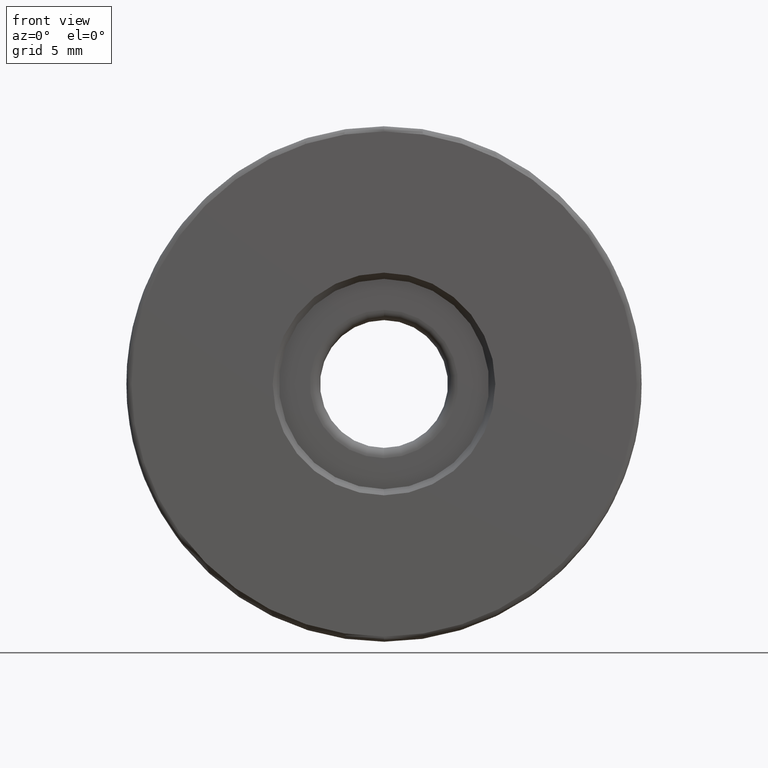
[diagram: clean part render]
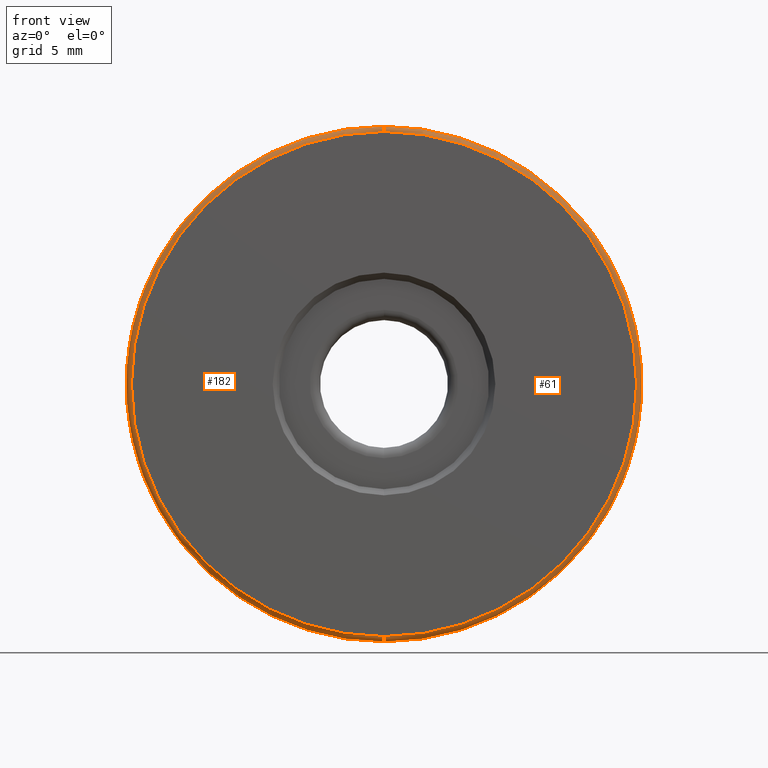
[diagram: same view with one multi-face feature highlighted, each face labeled with its STEP entity id]
A machine part, front view. The highlighted faces form ONE feature: a constant-radius fillet chain: 2 tangent blend faces with common blend radius 0.25 mm. The faces share edges in the B-rep.
Their STEP definitions:
[1] entity #61 (Torus):
#36 = EDGE_LOOP ( 'NONE', ( #419, #358, #175, #423 ) ) ;
#40 = AXIS2_PLACEMENT_3D ( 'NONE', #528, #105, #387 ) ;
#61 = ADVANCED_FACE ( 'NONE', ( #146 ), #520, .T. ) ;
#105 = DIRECTION ( 'NONE',  ( 0.0000000000000000000, 1.000000000000000000, 0.0000000000000000000 ) ) ;
#108 = VERTEX_POINT ( 'NONE', #385 ) ;
#146 = FACE_OUTER_BOUND ( 'NONE', #36, .T. ) ;
#159 = CARTESIAN_POINT ( 'NONE',  ( -4.682026255059962949, -2.844975976998274536, 12.75000000000000178 ) ) ;
#161 = VERTEX_POINT ( 'NONE', #379 ) ;
#165 = DIRECTION ( 'NONE',  ( 0.0000000000000000000, 1.000000000000000000, 0.0000000000000000000 ) ) ;
#175 = ORIENTED_EDGE ( 'NONE', *, *, #197, .F. ) ;
#179 = DIRECTION ( 'NONE',  ( -1.000000000000000000, 0.0000000000000000000, 0.0000000000000000000 ) ) ;
#197 = EDGE_CURVE ( 'NONE', #300, #311, #388, .T. ) ;
#203 = AXIS2_PLACEMENT_3D ( 'NONE', #350, #165, #359 ) ;
#207 = DIRECTION ( 'NONE',  ( 1.000000000000000000, -0.0000000000000000000, 1.224646799147353207E-16 ) ) ;
#218 = CARTESIAN_POINT ( 'NONE',  ( -4.682026255059964726, -2.844975976998274536, 37.25000000000000711 ) ) ;
#222 = CIRCLE ( 'NONE', #542, 0.2500000000000002220 ) ;
#243 = CIRCLE ( 'NONE', #438, 0.2500000000000002220 ) ;
#251 = CARTESIAN_POINT ( 'NONE',  ( -4.682026255059962949, -2.844975976998274536, 37.50000000000000711 ) ) ;
#253 = AXIS2_PLACEMENT_3D ( 'NONE', #604, #371, #410 ) ;
#268 = EDGE_CURVE ( 'NONE', #161, #311, #222, .T. ) ;
#300 = VERTEX_POINT ( 'NONE', #251 ) ;
#310 = DIRECTION ( 'NONE',  ( 0.0000000000000000000, 0.0000000000000000000, -1.000000000000000000 ) ) ;
#311 = VERTEX_POINT ( 'NONE', #450 ) ;
#350 = CARTESIAN_POINT ( 'NONE',  ( -4.682026255059964726, -2.844975976998274536, 25.00000000000000000 ) ) ;
#358 = ORIENTED_EDGE ( 'NONE', *, *, #268, .T. ) ;
#359 = DIRECTION ( 'NONE',  ( 0.0000000000000000000, 0.0000000000000000000, 1.000000000000000000 ) ) ;
#371 = DIRECTION ( 'NONE',  ( -0.0000000000000000000, -1.000000000000000000, -0.0000000000000000000 ) ) ;
#379 = CARTESIAN_POINT ( 'NONE',  ( -4.682026255059962949, -3.094975976998274536, 12.75000000000000178 ) ) ;
#385 = CARTESIAN_POINT ( 'NONE',  ( -4.682026255059964726, -3.094975976998274536, 37.25000000000000711 ) ) ;
#387 = DIRECTION ( 'NONE',  ( 0.0000000000000000000, 0.0000000000000000000, 1.000000000000000000 ) ) ;
#388 = CIRCLE ( 'NONE', #203, 12.50000000000000355 ) ;
#398 = EDGE_CURVE ( 'NONE', #108, #300, #243, .T. ) ;
#410 = DIRECTION ( 'NONE',  ( 0.0000000000000000000, 0.0000000000000000000, 1.000000000000000000 ) ) ;
#412 = DIRECTION ( 'NONE',  ( 0.0000000000000000000, 0.0000000000000000000, 1.000000000000000000 ) ) ;
#419 = ORIENTED_EDGE ( 'NONE', *, *, #445, .F. ) ;
#423 = ORIENTED_EDGE ( 'NONE', *, *, #398, .F. ) ;
#438 = AXIS2_PLACEMENT_3D ( 'NONE', #218, #179, #412 ) ;
#445 = EDGE_CURVE ( 'NONE', #161, #108, #522, .T. ) ;
#450 = CARTESIAN_POINT ( 'NONE',  ( -4.682026255059964726, -2.844975976998274536, 12.50000000000000000 ) ) ;
#520 = TOROIDAL_SURFACE ( 'NONE', #40, 12.25000000000000000, 0.2500000000000000000 ) ;
#522 = CIRCLE ( 'NONE', #253, 12.25000000000000355 ) ;
#528 = CARTESIAN_POINT ( 'NONE',  ( -4.682026255059964726, -2.844975976998274536, 25.00000000000000000 ) ) ;
#542 = AXIS2_PLACEMENT_3D ( 'NONE', #159, #207, #310 ) ;
#604 = CARTESIAN_POINT ( 'NONE',  ( -4.682026255059964726, -3.094975976998274536, 25.00000000000000000 ) ) ;
[2] entity #182 (Torus):
#18 = CARTESIAN_POINT ( 'NONE',  ( -4.682026255059964726, -3.094975976998274536, 25.00000000000000000 ) ) ;
#33 = AXIS2_PLACEMENT_3D ( 'NONE', #196, #299, #420 ) ;
#66 = ORIENTED_EDGE ( 'NONE', *, *, #268, .F. ) ;
#86 = ORIENTED_EDGE ( 'NONE', *, *, #278, .F. ) ;
#108 = VERTEX_POINT ( 'NONE', #385 ) ;
#159 = CARTESIAN_POINT ( 'NONE',  ( -4.682026255059962949, -2.844975976998274536, 12.75000000000000178 ) ) ;
#161 = VERTEX_POINT ( 'NONE', #379 ) ;
#179 = DIRECTION ( 'NONE',  ( -1.000000000000000000, 0.0000000000000000000, 0.0000000000000000000 ) ) ;
#182 = ADVANCED_FACE ( 'NONE', ( #345 ), #564, .T. ) ;
#192 = AXIS2_PLACEMENT_3D ( 'NONE', #18, #541, #355 ) ;
#196 = CARTESIAN_POINT ( 'NONE',  ( -4.682026255059964726, -2.844975976998274536, 25.00000000000000000 ) ) ;
#207 = DIRECTION ( 'NONE',  ( 1.000000000000000000, -0.0000000000000000000, 1.224646799147353207E-16 ) ) ;
#218 = CARTESIAN_POINT ( 'NONE',  ( -4.682026255059964726, -2.844975976998274536, 37.25000000000000711 ) ) ;
#222 = CIRCLE ( 'NONE', #542, 0.2500000000000002220 ) ;
#243 = CIRCLE ( 'NONE', #438, 0.2500000000000002220 ) ;
#246 = ORIENTED_EDGE ( 'NONE', *, *, #398, .T. ) ;
#251 = CARTESIAN_POINT ( 'NONE',  ( -4.682026255059962949, -2.844975976998274536, 37.50000000000000711 ) ) ;
#268 = EDGE_CURVE ( 'NONE', #161, #311, #222, .T. ) ;
#278 = EDGE_CURVE ( 'NONE', #108, #161, #378, .T. ) ;
#286 = EDGE_CURVE ( 'NONE', #311, #300, #343, .T. ) ;
#297 = ORIENTED_EDGE ( 'NONE', *, *, #286, .F. ) ;
#299 = DIRECTION ( 'NONE',  ( 0.0000000000000000000, 1.000000000000000000, 0.0000000000000000000 ) ) ;
#300 = VERTEX_POINT ( 'NONE', #251 ) ;
#310 = DIRECTION ( 'NONE',  ( 0.0000000000000000000, 0.0000000000000000000, -1.000000000000000000 ) ) ;
#311 = VERTEX_POINT ( 'NONE', #450 ) ;
#314 = EDGE_LOOP ( 'NONE', ( #66, #86, #246, #297 ) ) ;
#343 = CIRCLE ( 'NONE', #467, 12.50000000000000355 ) ;
#345 = FACE_OUTER_BOUND ( 'NONE', #314, .T. ) ;
#355 = DIRECTION ( 'NONE',  ( 0.0000000000000000000, 0.0000000000000000000, 1.000000000000000000 ) ) ;
#378 = CIRCLE ( 'NONE', #192, 12.25000000000000355 ) ;
#379 = CARTESIAN_POINT ( 'NONE',  ( -4.682026255059962949, -3.094975976998274536, 12.75000000000000178 ) ) ;
#385 = CARTESIAN_POINT ( 'NONE',  ( -4.682026255059964726, -3.094975976998274536, 37.25000000000000711 ) ) ;
#398 = EDGE_CURVE ( 'NONE', #108, #300, #243, .T. ) ;
#412 = DIRECTION ( 'NONE',  ( 0.0000000000000000000, 0.0000000000000000000, 1.000000000000000000 ) ) ;
#420 = DIRECTION ( 'NONE',  ( 0.0000000000000000000, 0.0000000000000000000, 1.000000000000000000 ) ) ;
#438 = AXIS2_PLACEMENT_3D ( 'NONE', #218, #179, #412 ) ;
#450 = CARTESIAN_POINT ( 'NONE',  ( -4.682026255059964726, -2.844975976998274536, 12.50000000000000000 ) ) ;
#467 = AXIS2_PLACEMENT_3D ( 'NONE', #550, #494, #500 ) ;
#494 = DIRECTION ( 'NONE',  ( 0.0000000000000000000, 1.000000000000000000, 0.0000000000000000000 ) ) ;
#500 = DIRECTION ( 'NONE',  ( 0.0000000000000000000, 0.0000000000000000000, 1.000000000000000000 ) ) ;
#541 = DIRECTION ( 'NONE',  ( -0.0000000000000000000, -1.000000000000000000, -0.0000000000000000000 ) ) ;
#542 = AXIS2_PLACEMENT_3D ( 'NONE', #159, #207, #310 ) ;
#550 = CARTESIAN_POINT ( 'NONE',  ( -4.682026255059964726, -2.844975976998274536, 25.00000000000000000 ) ) ;
#564 = TOROIDAL_SURFACE ( 'NONE', #33, 12.25000000000000000, 0.2500000000000000000 ) ;